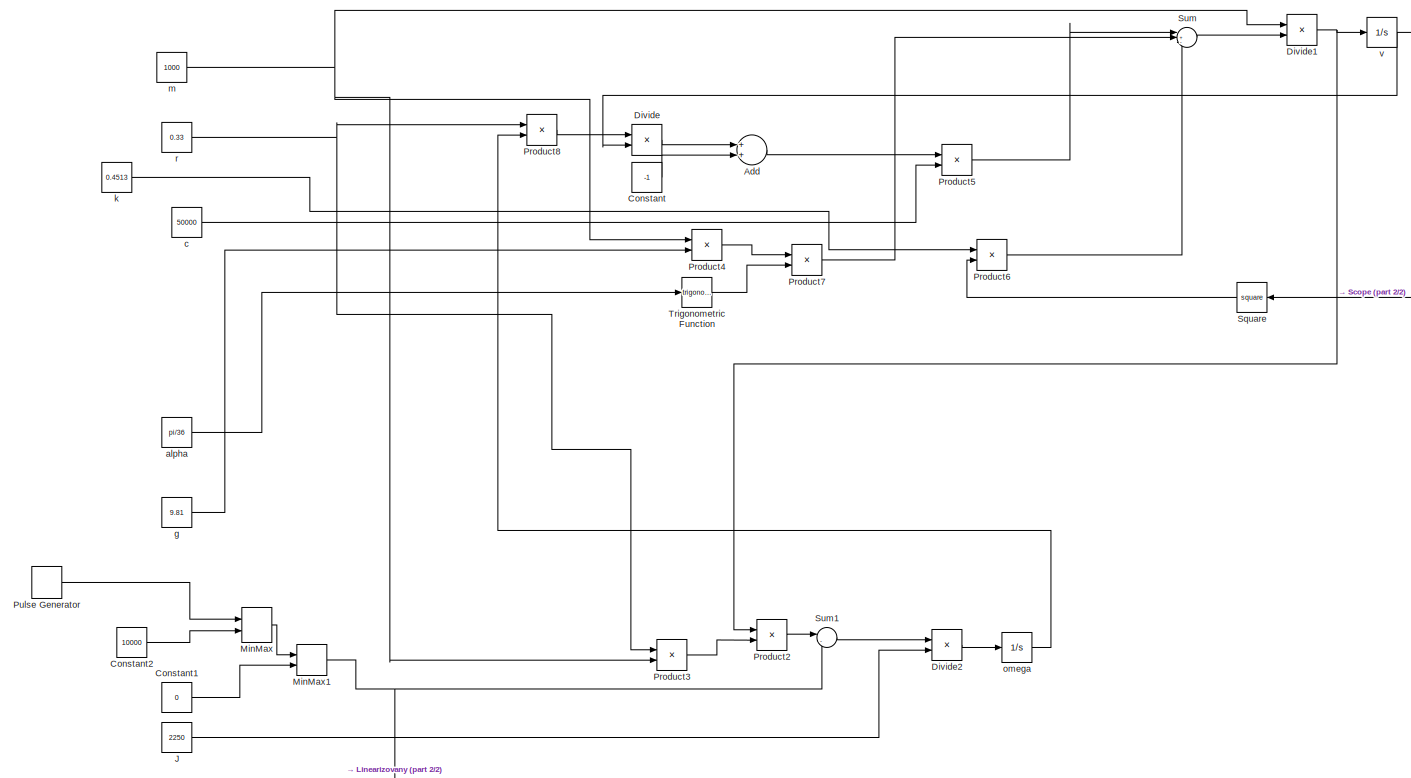
[diagram: root canvas - part 1/2, center side, full height]
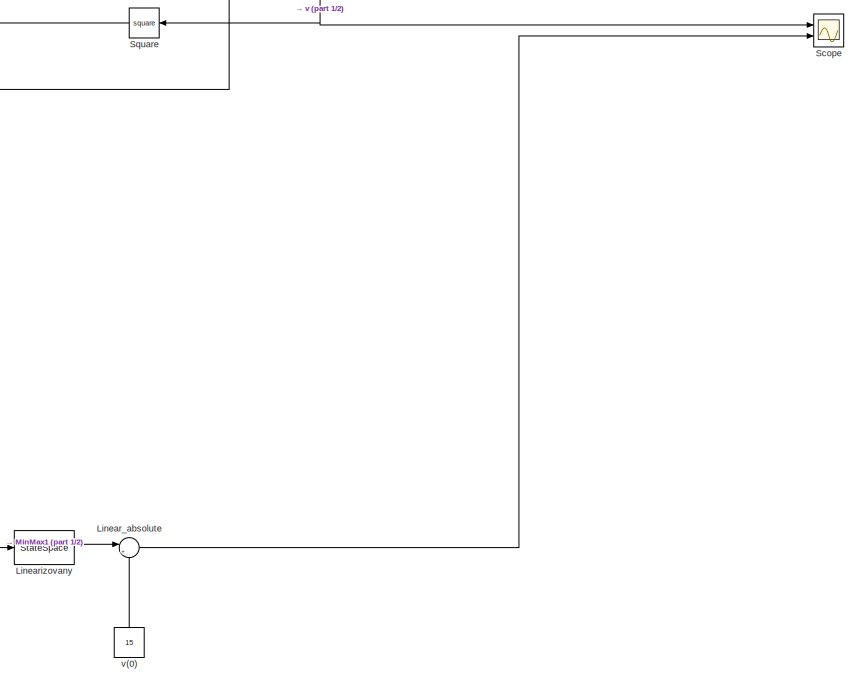
[diagram: root canvas - part 2/2, middle right region]
MODEL slx_fd7f46adc76d
KIND model
CONFIG AbsTol = auto
CONFIG EnableMultiTasking = off
CONFIG FixedStep = auto
CONFIG MaxStep = auto
CONFIG MinStep = auto
CONFIG RelTol = 1e-3
CONFIG SampleTimeConstraint = Unconstrained
CONFIG Solver = VariableStepAuto
CONFIG SolverName = VariableStepAuto
CONFIG StartTime = 0.0
CONFIG StopTime = 10.0
BLOCK [Sum] Add
  InputSameDT = off
  OutDataTypeStr = Inherit: Inherit via internal rule
  Ports = [2, 1]
  SaturateOnIntegerOverflow = off
BLOCK [Constant] Constant
  Value = -1
BLOCK [Constant] Constant1
  Value = 0
BLOCK [Constant] Constant2
  Value = 10000
BLOCK [Product] Divide
  InputSameDT = off
  Inputs = */
  OutDataTypeStr = Inherit: Inherit via internal rule
  Ports = [2, 1]
  RndMeth = Floor
  SaturateOnIntegerOverflow = off
BLOCK [Product] Divide1
  InputSameDT = off
  Inputs = /*
  OutDataTypeStr = Inherit: Inherit via internal rule
  Ports = [2, 1]
  RndMeth = Floor
  SaturateOnIntegerOverflow = off
BLOCK [Product] Divide2
  InputSameDT = off
  Inputs = */
  OutDataTypeStr = Inherit: Inherit via internal rule
  Ports = [2, 1]
  RndMeth = Floor
  SaturateOnIntegerOverflow = off
BLOCK [Constant] J
  Value = 2250
BLOCK [Sum] Linear_absolute
  IconShape = round
  InputSameDT = off
  Inputs = |++
  OutDataTypeStr = Inherit: Inherit via internal rule
  Ports = [2, 1]
  SaturateOnIntegerOverflow = off
BLOCK [StateSpace] Linearizovany
  A = [-3.4106 1.1; 0.5043 0.16133]
  B = [0; 1/2250]
  C = [1 0]
  D = 0
  InitialCondition = [0 ; 0]
  Ports = [1, 1]
BLOCK [MinMax] MinMax
  InputSameDT = off
  Inputs = 2
  Ports = [2, 1]
  SaturateOnIntegerOverflow = off
BLOCK [MinMax] MinMax1
  Function = max
  InputSameDT = off
  Inputs = 2
  Ports = [2, 1]
  SaturateOnIntegerOverflow = off
BLOCK [Product] Product2
  InputSameDT = off
  OutDataTypeStr = Inherit: Inherit via internal rule
  Ports = [2, 1]
  RndMeth = Floor
  SaturateOnIntegerOverflow = off
BLOCK [Product] Product3
  InputSameDT = off
  OutDataTypeStr = Inherit: Inherit via internal rule
  Ports = [2, 1]
  RndMeth = Floor
  SaturateOnIntegerOverflow = off
BLOCK [Product] Product4
  InputSameDT = off
  OutDataTypeStr = Inherit: Inherit via internal rule
  Ports = [2, 1]
  RndMeth = Floor
  SaturateOnIntegerOverflow = off
BLOCK [Product] Product5
  InputSameDT = off
  OutDataTypeStr = Inherit: Inherit via internal rule
  Ports = [2, 1]
  RndMeth = Floor
  SaturateOnIntegerOverflow = off
BLOCK [Product] Product6
  InputSameDT = off
  OutDataTypeStr = Inherit: Inherit via internal rule
  Ports = [2, 1]
  RndMeth = Floor
  SaturateOnIntegerOverflow = off
BLOCK [Product] Product7
  InputSameDT = off
  OutDataTypeStr = Inherit: Inherit via internal rule
  Ports = [2, 1]
  RndMeth = Floor
  SaturateOnIntegerOverflow = off
BLOCK [Product] Product8
  InputSameDT = off
  OutDataTypeStr = Inherit: Inherit via internal rule
  Ports = [2, 1]
  RndMeth = Floor
  SaturateOnIntegerOverflow = off
BLOCK [DiscretePulseGenerator] Pulse Generator
  Amplitude = 500
  Period = 1
  Ports = [0, 1]
  PulseType = Time based
  PulseWidth = 0.01
BLOCK [Scope] Scope
  Floating = off
  NumInputPorts = 2
  Ports = [2]
  ScopeSpecificationString = Simulink.scopes.TimeScopeBlockCfg('CurrentConfiguration', extmgr.ConfigurationSet(extmgr.Configuration('Core','General UI',true),extmgr.Configuration('Core','Source UI',true),extmgr.Configuration('Sources','WiredSimulink',true,'DataLogging',true,'DataLoggingVariableName','output','DataLoggingSaveFormat','StructureWithTime'),extmgr.Configuration('Visuals','Time Domain',true,'SerializedDisplays',{st...<+1505ch>
BLOCK [Math] Square
  Operator = square
  Ports = [1, 1]
  SignedPower = off
BLOCK [Sum] Sum
  IconShape = round
  InputSameDT = off
  Inputs = |+--
  OutDataTypeStr = Inherit: Inherit via internal rule
  Ports = [3, 1]
  SaturateOnIntegerOverflow = off
BLOCK [Sum] Sum1
  IconShape = round
  InputSameDT = off
  Inputs = |-+
  OutDataTypeStr = Inherit: Inherit via internal rule
  Ports = [2, 1]
  SaturateOnIntegerOverflow = off
BLOCK [Trigonometry] Trigonometric Function
  Ports = [1, 1]
BLOCK [Constant] alpha
  Value = pi/36
BLOCK [Constant] c
  Value = 50000
BLOCK [Constant] g
  Value = 9.81
BLOCK [Constant] k 
  Value = 0.4513
BLOCK [Constant] m
  Value = 1000
BLOCK [Integrator] omega
  InitialCondition = 46.3241
  Ports = [1, 1]
BLOCK [Constant] r
  Value = 0.33
BLOCK [Integrator] v
  InitialCondition = 15
  Ports = [1, 1]
BLOCK [Constant] v(0)
  Value = 15
LINE Add:1 -> Product5:1
LINE Constant1:1 -> MinMax1:2
LINE Constant2:1 -> MinMax:2
LINE Constant:1 -> Add:2
NET Divide1:1 -> Product2:1, v:1
LINE Divide2:1 -> omega:1
LINE Divide:1 -> Add:1
LINE J:1 -> Divide2:2
LINE Linear_absolute:1 -> Scope:2
LINE Linearizovany:1 -> Linear_absolute:1
NET MinMax1:1 -> Linearizovany:1, Sum1:2
LINE MinMax:1 -> MinMax1:1
LINE Product2:1 -> Sum1:1
LINE Product3:1 -> Product2:2
LINE Product4:1 -> Product7:1
LINE Product5:1 -> Sum:1
LINE Product6:1 -> Sum:3
LINE Product7:1 -> Sum:2
LINE Product8:1 -> Divide:1
LINE Pulse Generator:1 -> MinMax:1
LINE Square:1 -> Product6:2
LINE Sum1:1 -> Divide2:1
LINE Sum:1 -> Divide1:2
LINE Trigonometric Function:1 -> Product7:2
LINE alpha:1 -> Trigonometric Function:1
LINE c:1 -> Product5:2
LINE g:1 -> Product4:2
LINE k :1 -> Product6:1
NET m:1 -> Divide1:1, Product3:2, Product4:1
LINE omega:1 -> Product8:2
NET r:1 -> Product3:1, Product8:1
LINE v(0):1 -> Linear_absolute:2
NET v:1 -> Divide:2, Scope:1, Square:1
note: NET lines group one-source signal fan-out (src -> all destinations, sorted); 1:1 wires keep LINE
